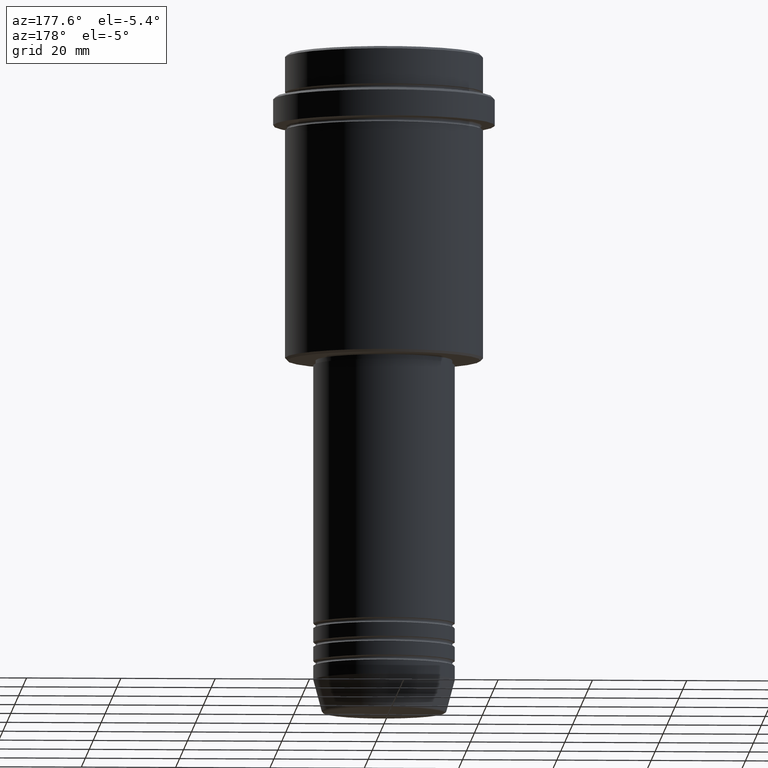
[diagram: clean part render]
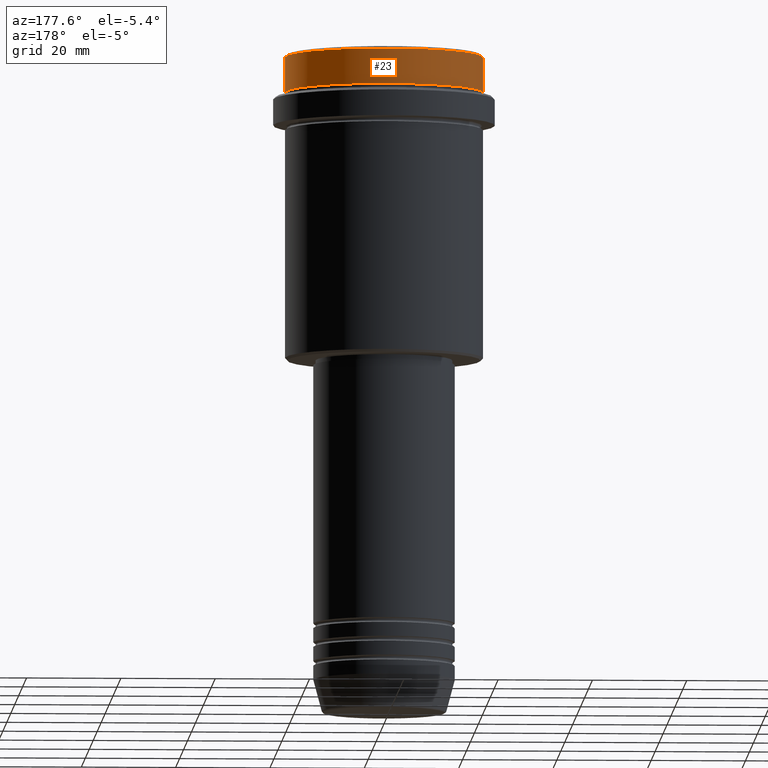
[diagram: same view with one face highlighted and labeled with its STEP entity id]
A machine part, auxiliary view. The second image highlights one B-rep face of the part: STEP entity #23.
In plain terms, the highlighted cylindrical surface (partial cylindrical patch) has radius 21 mm, axis along (-0, -0, 1).
Its self-contained STEP definition (entity closure, byte-faithful):
#23 = ADVANCED_FACE ( 'NONE', ( #763 ), #224, .T. ) ;
#24 = CARTESIAN_POINT ( 'NONE',  ( 21.00000000000000000, 0.000000000000000000, 0.000000000000000000 ) ) ;
#31 = AXIS2_PLACEMENT_3D ( 'NONE', #1342, #248, #924 ) ;
#114 = CARTESIAN_POINT ( 'NONE',  ( 21.00000000000000000, 0.000000000000000000, -7.999999999999998224 ) ) ;
#117 = DIRECTION ( 'NONE',  ( -0.000000000000000000, -0.000000000000000000, 1.000000000000000000 ) ) ;
#130 = CARTESIAN_POINT ( 'NONE',  ( 0.000000000000000000, 0.000000000000000000, 0.000000000000000000 ) ) ;
#224 = CYLINDRICAL_SURFACE ( 'NONE', #498, 21.00000000000000000 ) ;
#241 = EDGE_CURVE ( 'NONE', #612, #832, #1031, .T. ) ;
#244 = VECTOR ( 'NONE', #117, 1000.000000000000000 ) ;
#248 = DIRECTION ( 'NONE',  ( 0.000000000000000000, 0.000000000000000000, -1.000000000000000000 ) ) ;
#252 = VERTEX_POINT ( 'NONE', #589 ) ;
#367 = VECTOR ( 'NONE', #1124, 1000.000000000000000 ) ;
#411 = AXIS2_PLACEMENT_3D ( 'NONE', #563, #1119, #1002 ) ;
#498 = AXIS2_PLACEMENT_3D ( 'NONE', #130, #739, #973 ) ;
#531 = LINE ( 'NONE', #1098, #244 ) ;
#563 = CARTESIAN_POINT ( 'NONE',  ( 0.000000000000000000, 0.000000000000000000, -7.999999999999998224 ) ) ;
#567 = ORIENTED_EDGE ( 'NONE', *, *, #1096, .F. ) ;
#582 = ORIENTED_EDGE ( 'NONE', *, *, #241, .T. ) ;
#589 = CARTESIAN_POINT ( 'NONE',  ( 21.00000000000000000, 0.000000000000000000, -0.5000000000000247580 ) ) ;
#612 = VERTEX_POINT ( 'NONE', #114 ) ;
#691 = ORIENTED_EDGE ( 'NONE', *, *, #1078, .T. ) ;
#739 = DIRECTION ( 'NONE',  ( -0.000000000000000000, -0.000000000000000000, 1.000000000000000000 ) ) ;
#763 = FACE_OUTER_BOUND ( 'NONE', #1355, .T. ) ;
#832 = VERTEX_POINT ( 'NONE', #841 ) ;
#836 = ORIENTED_EDGE ( 'NONE', *, *, #956, .T. ) ;
#841 = CARTESIAN_POINT ( 'NONE',  ( -21.00000000000000000, 2.571758278209441661E-15, -7.999999999999998224 ) ) ;
#924 = DIRECTION ( 'NONE',  ( 1.000000000000000000, 0.000000000000000000, 0.000000000000000000 ) ) ;
#956 = EDGE_CURVE ( 'NONE', #832, #975, #531, .T. ) ;
#973 = DIRECTION ( 'NONE',  ( 1.000000000000000000, 0.000000000000000000, 0.000000000000000000 ) ) ;
#974 = CIRCLE ( 'NONE', #31, 21.00000000000000000 ) ;
#975 = VERTEX_POINT ( 'NONE', #1317 ) ;
#1002 = DIRECTION ( 'NONE',  ( 1.000000000000000000, 0.000000000000000000, 0.000000000000000000 ) ) ;
#1031 = CIRCLE ( 'NONE', #411, 21.00000000000000000 ) ;
#1078 = EDGE_CURVE ( 'NONE', #975, #252, #974, .T. ) ;
#1096 = EDGE_CURVE ( 'NONE', #612, #252, #1226, .T. ) ;
#1098 = CARTESIAN_POINT ( 'NONE',  ( -21.00000000000000000, 2.571758278209441661E-15, 0.000000000000000000 ) ) ;
#1119 = DIRECTION ( 'NONE',  ( -0.000000000000000000, -0.000000000000000000, 1.000000000000000000 ) ) ;
#1124 = DIRECTION ( 'NONE',  ( -0.000000000000000000, -0.000000000000000000, 1.000000000000000000 ) ) ;
#1226 = LINE ( 'NONE', #24, #367 ) ;
#1317 = CARTESIAN_POINT ( 'NONE',  ( -21.00000000000000000, 2.571758278209441661E-15, -0.5000000000000247580 ) ) ;
#1342 = CARTESIAN_POINT ( 'NONE',  ( 0.000000000000000000, 0.000000000000000000, -0.5000000000000247580 ) ) ;
#1355 = EDGE_LOOP ( 'NONE', ( #582, #836, #691, #567 ) ) ;